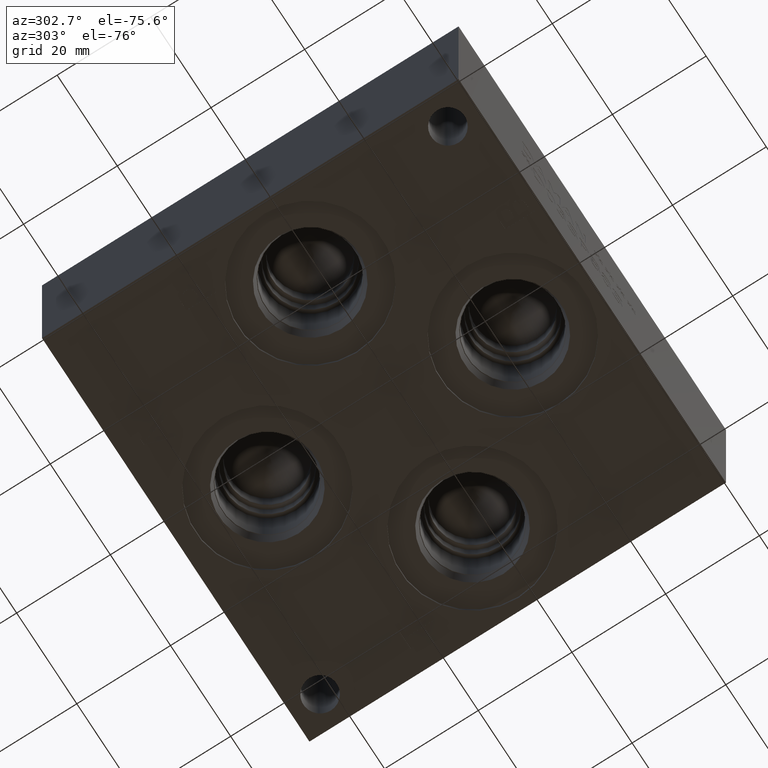
[diagram: clean part render]
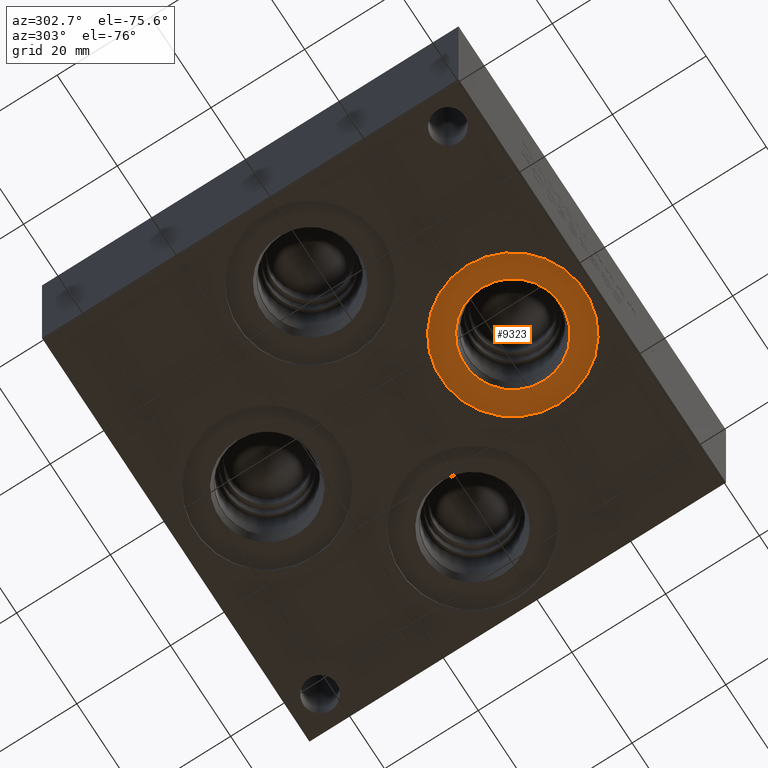
[diagram: same view with one face highlighted and labeled with its STEP entity id]
A machine part, auxiliary view. The second image highlights one B-rep face of the part: STEP entity #9323.
In plain terms, the highlighted planar face has unit normal (0, 0, 1).
Its self-contained STEP definition (entity closure, byte-faithful):
#104=CIRCLE('',#9703,15.3162);
#105=CIRCLE('',#9704,15.3162);
#106=CIRCLE('',#9706,10.2997);
#107=CIRCLE('',#9707,10.2997);
#256=FACE_BOUND('',#1489,.T.);
#537=PLANE('',#9705);
#964=FACE_OUTER_BOUND('',#1488,.T.);
#1488=EDGE_LOOP('',(#8039,#8040));
#1489=EDGE_LOOP('',(#8041,#8042));
#4376=VERTEX_POINT('',#15851);
#4377=VERTEX_POINT('',#15853);
#4378=VERTEX_POINT('',#15857);
#4379=VERTEX_POINT('',#15858);
#5629=EDGE_CURVE('',#4376,#4377,#104,.T.);
#5630=EDGE_CURVE('',#4377,#4376,#105,.T.);
#5631=EDGE_CURVE('',#4378,#4379,#106,.T.);
#5632=EDGE_CURVE('',#4379,#4378,#107,.T.);
#8039=ORIENTED_EDGE('',*,*,#5630,.F.);
#8040=ORIENTED_EDGE('',*,*,#5629,.F.);
#8041=ORIENTED_EDGE('',*,*,#5631,.T.);
#8042=ORIENTED_EDGE('',*,*,#5632,.T.);
#9323=ADVANCED_FACE('',(#964,#256),#537,.F.);
#9703=AXIS2_PLACEMENT_3D('',#15854,#11292,#11293);
#9704=AXIS2_PLACEMENT_3D('',#15855,#11294,#11295);
#9705=AXIS2_PLACEMENT_3D('',#15856,#11296,#11297);
#9706=AXIS2_PLACEMENT_3D('',#15859,#11298,#11299);
#9707=AXIS2_PLACEMENT_3D('',#15860,#11300,#11301);
#11292=DIRECTION('center_axis',(0.,0.,1.));
#11293=DIRECTION('ref_axis',(1.,0.,0.));
#11294=DIRECTION('center_axis',(0.,0.,1.));
#11295=DIRECTION('ref_axis',(1.,0.,0.));
#11296=DIRECTION('center_axis',(0.,0.,1.));
#11297=DIRECTION('ref_axis',(1.,0.,0.));
#11298=DIRECTION('center_axis',(0.,0.,1.));
#11299=DIRECTION('ref_axis',(1.,0.,0.));
#11300=DIRECTION('center_axis',(0.,0.,1.));
#11301=DIRECTION('ref_axis',(1.,0.,0.));
#15851=CARTESIAN_POINT('',(29.9212,17.4625,0.7874));
#15853=CARTESIAN_POINT('',(60.5536,17.4625,0.7874));
#15854=CARTESIAN_POINT('Origin',(45.2374,17.4625,0.7874));
#15855=CARTESIAN_POINT('Origin',(45.2374,17.4625,0.7874));
#15856=CARTESIAN_POINT('Origin',(55.5371,17.4625,0.7874));
#15857=CARTESIAN_POINT('',(55.5371,17.4625,0.7874));
#15858=CARTESIAN_POINT('',(34.9377,17.4625,0.787400000000001));
#15859=CARTESIAN_POINT('Origin',(45.2374,17.4625,0.7874));
#15860=CARTESIAN_POINT('Origin',(45.2374,17.4625,0.7874));